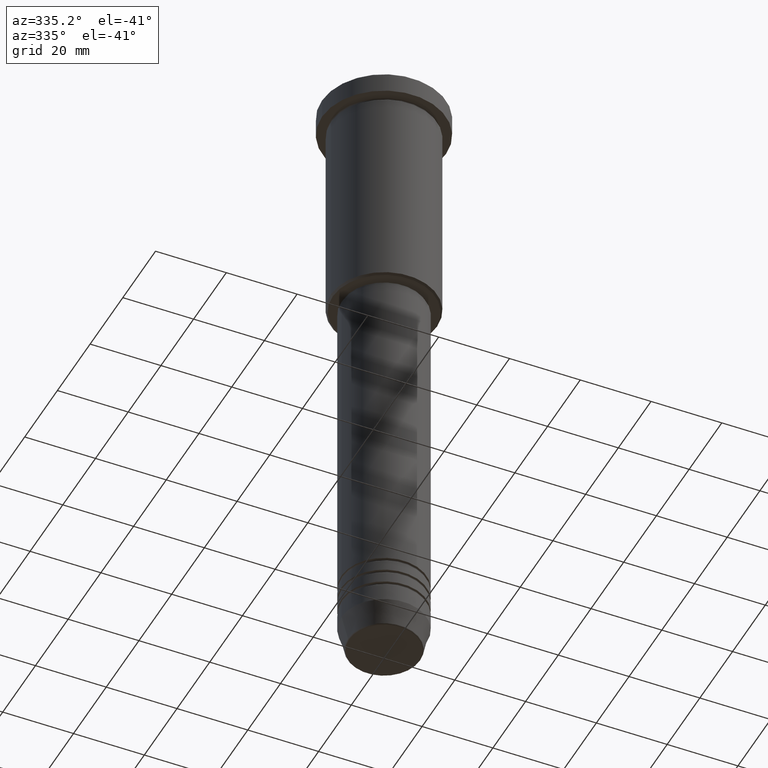
[diagram: clean part render]
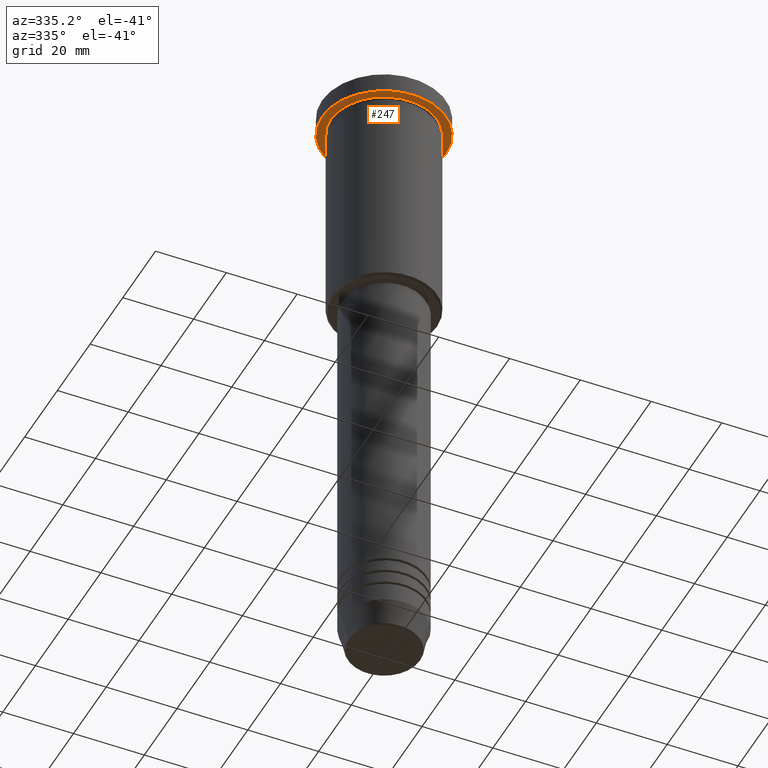
[diagram: same view with one face highlighted and labeled with its STEP entity id]
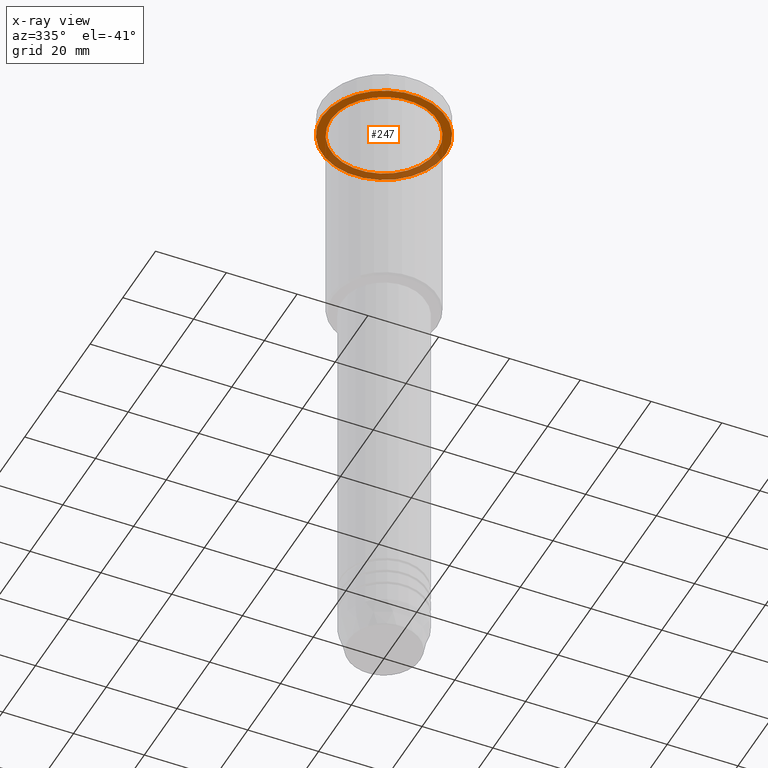
[diagram: x-ray of the same camera — body ghosted, the highlighted face saturated]
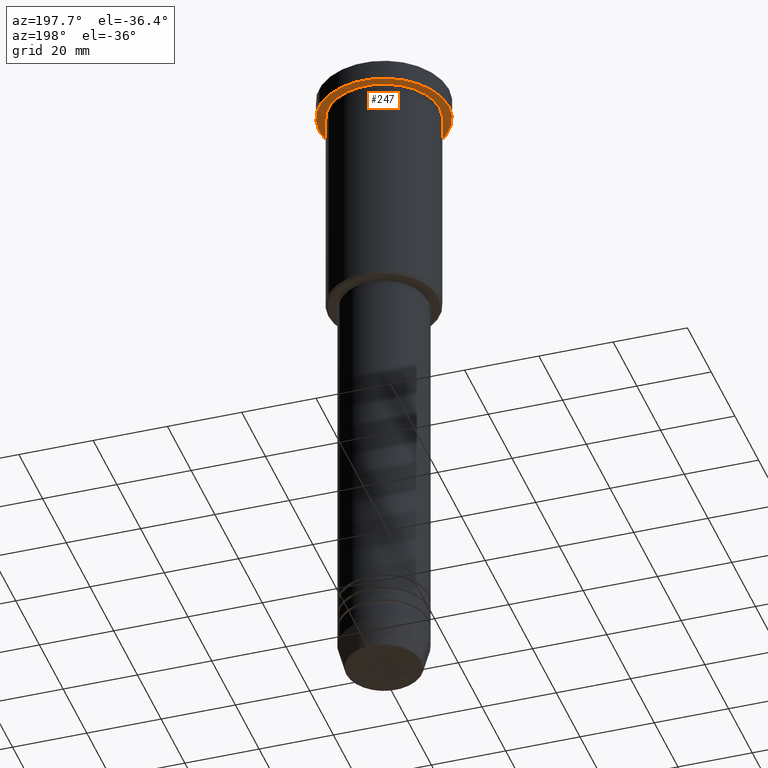
[diagram: same view with one face highlighted and labeled with its STEP entity id]
A machine part, auxiliary view. The second image highlights one B-rep face of the part: STEP entity #247.
The next image is the same camera in x-ray: the body ghosted, the highlighted face saturated — about 33% of this face is hidden behind the body in this view.
A second angle (auxiliary view) of the same face is appended — the face is thin or edge-on in the first view.
In plain terms, the highlighted planar face has unit normal (0, 0, -1).
Its self-contained STEP definition (entity closure, byte-faithful):
#9 = ORIENTED_EDGE ( 'NONE', *, *, #160, .F. ) ;
#53 = AXIS2_PLACEMENT_3D ( 'NONE', #665, #1030, #393 ) ;
#55 = DIRECTION ( 'NONE',  ( -1.000000000000000000, 0.000000000000000000, 0.000000000000000000 ) ) ;
#80 = EDGE_CURVE ( 'NONE', #762, #999, #1108, .T. ) ;
#160 = EDGE_CURVE ( 'NONE', #481, #405, #449, .T. ) ;
#240 = CARTESIAN_POINT ( 'NONE',  ( 0.000000000000000000, 0.000000000000000000, -5.999999999999995559 ) ) ;
#247 = ADVANCED_FACE ( 'NONE', ( #554, #764 ), #324, .T. ) ;
#251 = AXIS2_PLACEMENT_3D ( 'NONE', #643, #630, #806 ) ;
#255 = EDGE_CURVE ( 'NONE', #405, #481, #1070, .T. ) ;
#267 = CARTESIAN_POINT ( 'NONE',  ( 17.50000000000000000, 0.000000000000000000, -5.999999999999995559 ) ) ;
#316 = ORIENTED_EDGE ( 'NONE', *, *, #80, .T. ) ;
#318 = DIRECTION ( 'NONE',  ( -1.000000000000000000, 0.000000000000000000, -0.000000000000000000 ) ) ;
#324 = PLANE ( 'NONE',  #570 ) ;
#366 = AXIS2_PLACEMENT_3D ( 'NONE', #577, #425, #944 ) ;
#393 = DIRECTION ( 'NONE',  ( 1.000000000000000000, 0.000000000000000000, 0.000000000000000000 ) ) ;
#405 = VERTEX_POINT ( 'NONE', #633 ) ;
#410 = ORIENTED_EDGE ( 'NONE', *, *, #255, .F. ) ;
#413 = DIRECTION ( 'NONE',  ( 0.000000000000000000, 0.000000000000000000, -1.000000000000000000 ) ) ;
#423 = DIRECTION ( 'NONE',  ( -0.000000000000000000, -0.000000000000000000, 1.000000000000000000 ) ) ;
#425 = DIRECTION ( 'NONE',  ( -0.000000000000000000, -0.000000000000000000, 1.000000000000000000 ) ) ;
#449 = CIRCLE ( 'NONE', #251, 17.50000000000000000 ) ;
#481 = VERTEX_POINT ( 'NONE', #267 ) ;
#494 = CARTESIAN_POINT ( 'NONE',  ( 0.000000000000000000, 17.50000000000000000, -5.999999999999995559 ) ) ;
#554 = FACE_BOUND ( 'NONE', #918, .T. ) ;
#570 = AXIS2_PLACEMENT_3D ( 'NONE', #494, #413, #318 ) ;
#577 = CARTESIAN_POINT ( 'NONE',  ( 0.000000000000000000, 0.000000000000000000, -5.999999999999995559 ) ) ;
#630 = DIRECTION ( 'NONE',  ( -0.000000000000000000, -0.000000000000000000, 1.000000000000000000 ) ) ;
#633 = CARTESIAN_POINT ( 'NONE',  ( -17.50000000000000000, 2.143131898507868248E-15, -5.999999999999995559 ) ) ;
#643 = CARTESIAN_POINT ( 'NONE',  ( 0.000000000000000000, 0.000000000000000000, -5.999999999999995559 ) ) ;
#665 = CARTESIAN_POINT ( 'NONE',  ( 0.000000000000000000, 0.000000000000000000, -5.999999999999995559 ) ) ;
#762 = VERTEX_POINT ( 'NONE', #861 ) ;
#764 = FACE_OUTER_BOUND ( 'NONE', #1174, .T. ) ;
#776 = CARTESIAN_POINT ( 'NONE',  ( 15.00000000000000000, 1.836970198721029589E-15, -5.999999999999994671 ) ) ;
#806 = DIRECTION ( 'NONE',  ( 1.000000000000000000, 0.000000000000000000, 0.000000000000000000 ) ) ;
#861 = CARTESIAN_POINT ( 'NONE',  ( -15.00000000000000000, 0.000000000000000000, -5.999999999999994671 ) ) ;
#918 = EDGE_LOOP ( 'NONE', ( #316, #1081 ) ) ;
#944 = DIRECTION ( 'NONE',  ( -1.000000000000000000, 0.000000000000000000, 0.000000000000000000 ) ) ;
#999 = VERTEX_POINT ( 'NONE', #776 ) ;
#1020 = EDGE_CURVE ( 'NONE', #999, #762, #1080, .T. ) ;
#1030 = DIRECTION ( 'NONE',  ( -0.000000000000000000, -0.000000000000000000, 1.000000000000000000 ) ) ;
#1070 = CIRCLE ( 'NONE', #53, 17.50000000000000000 ) ;
#1080 = CIRCLE ( 'NONE', #366, 15.00000000000000000 ) ;
#1081 = ORIENTED_EDGE ( 'NONE', *, *, #1020, .T. ) ;
#1108 = CIRCLE ( 'NONE', #1123, 15.00000000000000000 ) ;
#1123 = AXIS2_PLACEMENT_3D ( 'NONE', #240, #423, #55 ) ;
#1174 = EDGE_LOOP ( 'NONE', ( #9, #410 ) ) ;